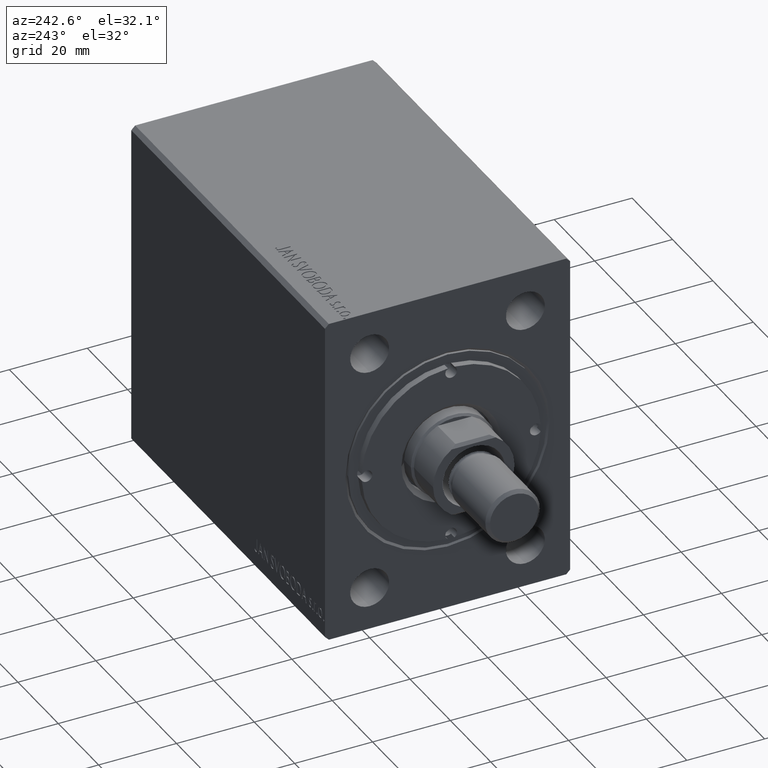
[diagram: clean part render]
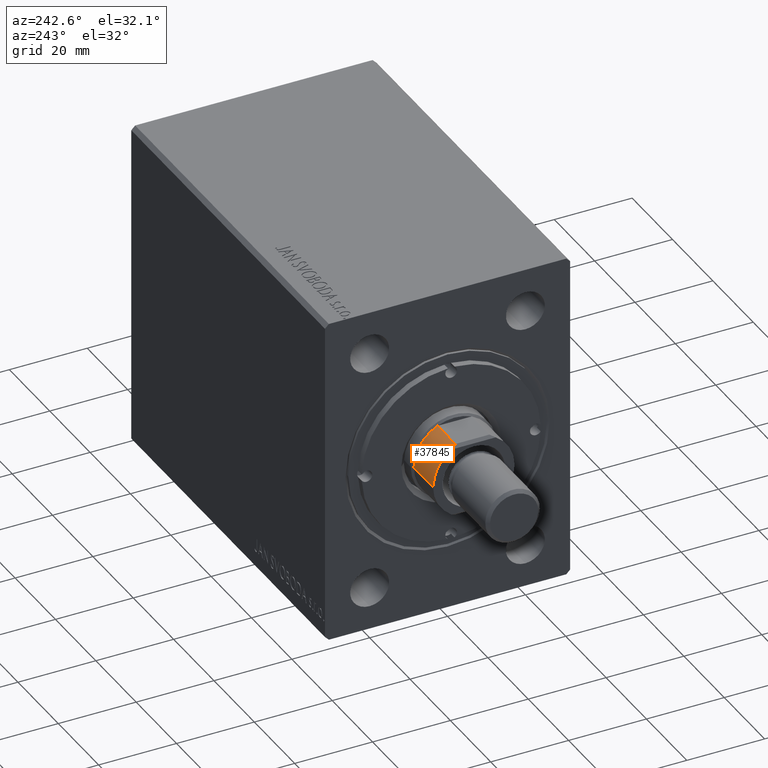
[diagram: same view with one face highlighted and labeled with its STEP entity id]
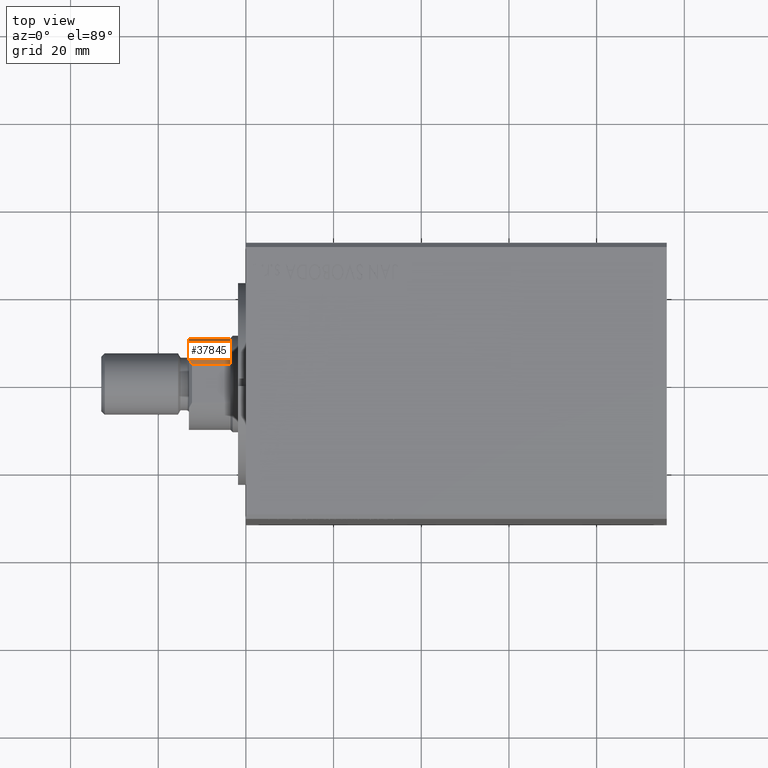
[diagram: same view with one face highlighted and labeled with its STEP entity id]
A machine part, auxiliary view. The second image highlights one B-rep face of the part: STEP entity #37845.
A second angle (top view) of the same face is appended — the face is thin or edge-on in the first view.
In plain terms, the highlighted cylindrical surface (partial cylindrical patch) has radius 10.46 mm, axis along (-1, 0, 0).
Its self-contained STEP definition (entity closure, byte-faithful):
#62 = CARTESIAN_POINT ( 'NONE',  ( -9.500000000000000000, -4.377396486497439732, 72.29000000000003467 ) ) ;
#289 = CARTESIAN_POINT ( 'NONE',  ( -9.500000000000000000, -4.377396486497439732, 73.00000000000001421 ) ) ;
#937 = DIRECTION ( 'NONE',  ( 0.000000000000000000, -1.000000000000000000, 0.000000000000000000 ) ) ;
#1439 = CARTESIAN_POINT ( 'NONE',  ( 1.314046015485110459E-15, -10.46000000000001506, 63.50000000000000000 ) ) ;
#1673 = CARTESIAN_POINT ( 'NONE',  ( -9.056889589612564961, -5.256118063110206684, 72.73311041038746794 ) ) ;
#1697 = DIRECTION ( 'NONE',  ( -0.000000000000000000, -1.783476453632827817E-16, 1.000000000000000000 ) ) ;
#2196 = DIRECTION ( 'NONE',  ( -0.000000000000000000, -1.783476453632827817E-16, 1.000000000000000000 ) ) ;
#5951 = CARTESIAN_POINT ( 'NONE',  ( -9.500000000000000000, -4.377396486497437955, 63.50000000000000000 ) ) ;
#8884 = CARTESIAN_POINT ( 'NONE',  ( -9.293949384395538971, -4.824575729748640462, 72.49605061560448860 ) ) ;
#8953 = VERTEX_POINT ( 'NONE', #1439 ) ;
#9064 = DIRECTION ( 'NONE',  ( -0.000000000000000000, -1.783476453632827817E-16, 1.000000000000000000 ) ) ;
#9124 = VERTEX_POINT ( 'NONE', #5951 ) ;
#9724 = CARTESIAN_POINT ( 'NONE',  ( 0.000000000000000000, -10.46000000000001506, 73.00000000000001421 ) ) ;
#10502 = ORIENTED_EDGE ( 'NONE', *, *, #22062, .T. ) ;
#10860 = EDGE_CURVE ( 'NONE', #8953, #22374, #15934, .T. ) ;
#11165 = EDGE_CURVE ( 'NONE', #9124, #8953, #25202, .T. ) ;
#13696 = ORIENTED_EDGE ( 'NONE', *, *, #17302, .T. ) ;
#15435 = DIRECTION ( 'NONE',  ( 0.000000000000000000, -1.000000000000000000, 0.000000000000000000 ) ) ;
#15810 = CARTESIAN_POINT ( 'NONE',  ( 0.000000000000000000, -1.301937811151964518E-14, 73.00000000000001421 ) ) ;
#15887 = CARTESIAN_POINT ( 'NONE',  ( -8.790000000000011582, -5.669876541865789932, 73.00000000000001421 ) ) ;
#15934 = LINE ( 'NONE', #36448, #26649 ) ;
#16140 = DIRECTION ( 'NONE',  ( 0.000000000000000000, 1.783476453632827817E-16, -1.000000000000000000 ) ) ;
#16265 = AXIS2_PLACEMENT_3D ( 'NONE', #15810, #9064, #32285 ) ;
#17302 = EDGE_CURVE ( 'NONE', #31021, #9124, #41281, .T. ) ;
#18608 = VECTOR ( 'NONE', #16140, 1000.000000000000000 ) ;
#20377 = EDGE_LOOP ( 'NONE', ( #23152, #22815, #22929, #10502, #13696 ) ) ;
#22062 = EDGE_CURVE ( 'NONE', #24031, #31021, #36110, .T. ) ;
#22374 = VERTEX_POINT ( 'NONE', #9724 ) ;
#22437 = CARTESIAN_POINT ( 'NONE',  ( 0.000000000000000000, -1.132507548056845853E-14, 63.50000000000000000 ) ) ;
#22815 = ORIENTED_EDGE ( 'NONE', *, *, #10860, .T. ) ;
#22821 = FACE_OUTER_BOUND ( 'NONE', #20377, .T. ) ;
#22929 = ORIENTED_EDGE ( 'NONE', *, *, #30356, .F. ) ;
#23152 = ORIENTED_EDGE ( 'NONE', *, *, #11165, .T. ) ;
#24031 = VERTEX_POINT ( 'NONE', #15887 ) ;
#25202 = CIRCLE ( 'NONE', #35994, 10.46000000000000263 ) ;
#26649 = VECTOR ( 'NONE', #2196, 1000.000000000000000 ) ;
#30356 = EDGE_CURVE ( 'NONE', #24031, #22374, #36944, .T. ) ;
#31021 = VERTEX_POINT ( 'NONE', #62 ) ;
#32285 = DIRECTION ( 'NONE',  ( 0.000000000000000000, -1.000000000000000000, 0.000000000000000000 ) ) ;
#32550 = CARTESIAN_POINT ( 'NONE',  ( -8.790000000000011582, -5.669876541865789932, 73.00000000000001421 ) ) ;
#34061 = AXIS2_PLACEMENT_3D ( 'NONE', #35186, #41923, #937 ) ;
#35186 = CARTESIAN_POINT ( 'NONE',  ( 0.000000000000000000, -1.301937811151964518E-14, 73.00000000000001421 ) ) ;
#35485 = CARTESIAN_POINT ( 'NONE',  ( -9.500000000000000000, -4.377396486497439732, 72.29000000000003467 ) ) ;
#35654 = CYLINDRICAL_SURFACE ( 'NONE', #16265, 10.46000000000000085 ) ;
#35994 = AXIS2_PLACEMENT_3D ( 'NONE', #22437, #1697, #15435 ) ;
#36110 =( BOUNDED_CURVE ( )  B_SPLINE_CURVE ( 3, ( #32550, #1673, #8884, #35485 ),
 .UNSPECIFIED., .F., .T. ) 
 B_SPLINE_CURVE_WITH_KNOTS ( ( 4, 4 ),
 ( 2.568714171481421449, 2.709811500076702018 ),
 .UNSPECIFIED. ) 
 CURVE ( )  GEOMETRIC_REPRESENTATION_ITEM ( )  RATIONAL_B_SPLINE_CURVE ( ( 1.000000000000000000, 0.9983416499762385321, 0.9983416499762385321, 1.000000000000000000 ) ) 
 REPRESENTATION_ITEM ( '' )  );
#36448 = CARTESIAN_POINT ( 'NONE',  ( 0.000000000000000000, -10.46000000000001506, 73.00000000000001421 ) ) ;
#36944 = CIRCLE ( 'NONE', #34061, 10.46000000000000085 ) ;
#37845 = ADVANCED_FACE ( 'NONE', ( #22821 ), #35654, .T. ) ;
#41281 = LINE ( 'NONE', #289, #18608 ) ;
#41923 = DIRECTION ( 'NONE',  ( -0.000000000000000000, -1.783476453632827817E-16, 1.000000000000000000 ) ) ;